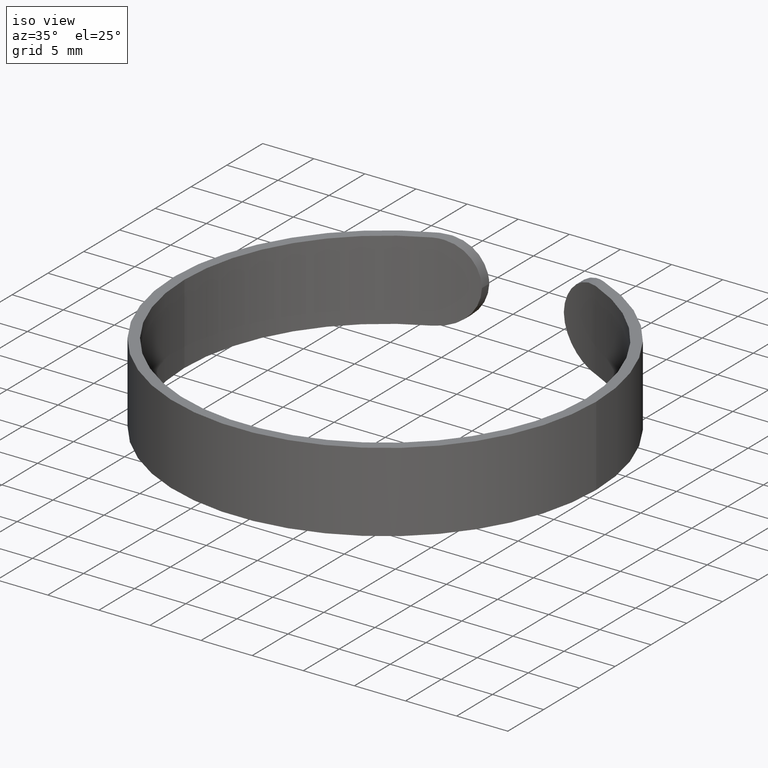
[diagram: clean part render]
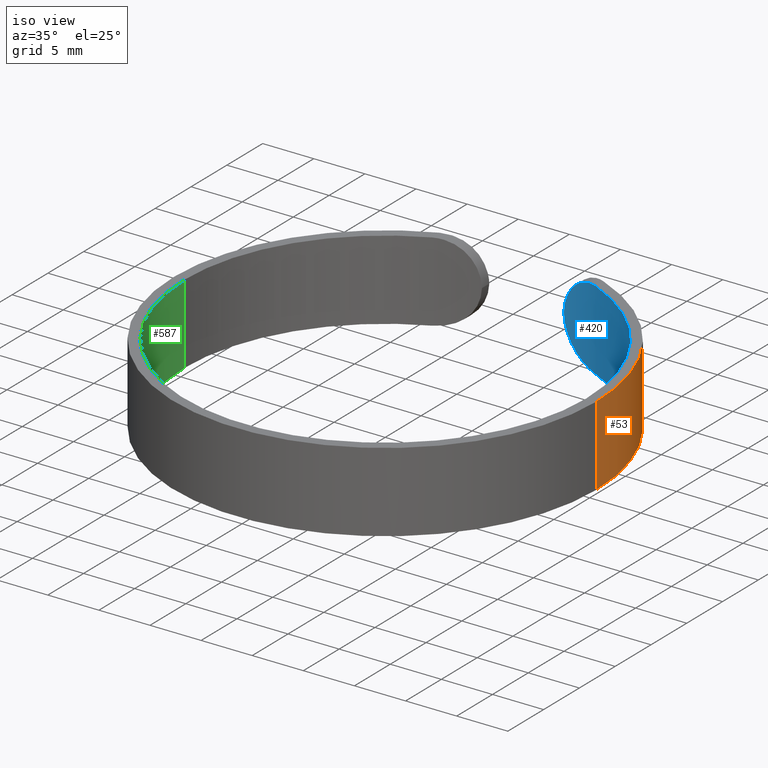
[diagram: same view with three faces highlighted in distinct colors, each labeled with its STEP entity id]
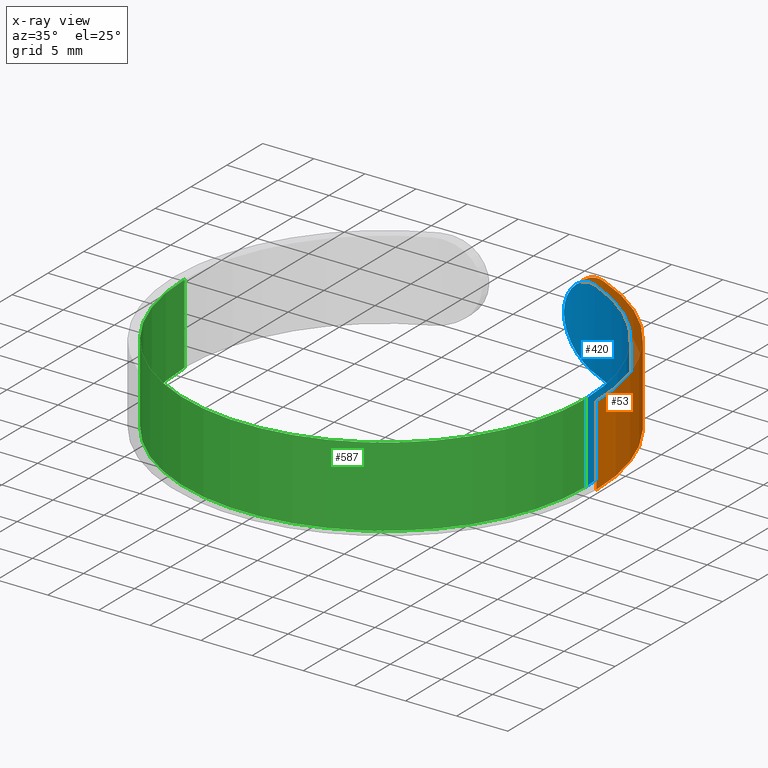
[diagram: x-ray of the same camera — body ghosted, the three highlighted faces saturated]
A machine part, iso view with three faces highlighted in distinct colors.
The next image is the same camera in x-ray (body ghosted, the three faces saturated) — at least one of them is partly hidden behind the body in this view.
Their STEP definitions:

[orange] entity #53 — the highlighted cylindrical surface (partial cylindrical patch) has radius 20.65 mm, axis along (-0, -0, -1).
#3 = CARTESIAN_POINT ( 'NONE',  ( 6.307868449288566400, 19.66454576154485100, 7.433185883465450100 ) ) ;
#21 = CARTESIAN_POINT ( 'NONE',  ( 4.895375029125314200, 20.06195776127647100, 1.464316113444598800 ) ) ;
#26 = CARTESIAN_POINT ( 'NONE',  ( 7.999999999999998200, 19.03739740615822700, 0.0000000000000000000 ) ) ;
#28 = CARTESIAN_POINT ( 'NONE',  ( 4.001250195373557100, 20.25864005490059900, 3.899999999999993200 ) ) ;
#38 = ORIENTED_EDGE ( 'NONE', *, *, #343, .T. ) ;
#46 = LINE ( 'NONE', #115, #200 ) ;
#53 = ADVANCED_FACE ( 'NONE', ( #530 ), #389, .T. ) ;
#54 = CARTESIAN_POINT ( 'NONE',  ( 6.776633648679635700, 19.50796762282028100, 7.616637737483452000 ) ) ;
#56 = CARTESIAN_POINT ( 'NONE',  ( 5.645090313509517600, 19.86472171443856300, 7.043598642528150900 ) ) ;
#72 = CARTESIAN_POINT ( 'NONE',  ( 4.243328438209134700, 20.20962064675951500, 2.601297775789987100 ) ) ;
#100 = CARTESIAN_POINT ( 'NONE',  ( 0.0000000000000000000, 0.0000000000000000000, 7.799999999999999800 ) ) ;
#110 = EDGE_CURVE ( 'NONE', #611, #638, #262, .T. ) ;
#115 = CARTESIAN_POINT ( 'NONE',  ( 20.64999999999999900, 2.528895640239284100E-015, 7.799999999999999800 ) ) ;
#117 = DIRECTION ( 'NONE',  ( -0.0000000000000000000, -0.0000000000000000000, -1.000000000000000000 ) ) ;
#120 = CARTESIAN_POINT ( 'NONE',  ( 6.309502619680717600, 19.66404555716294300, 0.3659257480248781500 ) ) ;
#124 = CARTESIAN_POINT ( 'NONE',  ( 4.007911188262439400, 20.25732445330909600, 3.633643559869719700 ) ) ;
#131 = CARTESIAN_POINT ( 'NONE',  ( 0.0000000000000000000, 0.0000000000000000000, 7.799999999999999800 ) ) ;
#132 = AXIS2_PLACEMENT_3D ( 'NONE', #568, #275, #619 ) ;
#167 = CARTESIAN_POINT ( 'NONE',  ( 20.64999999999999900, 2.528895640239284100E-015, 0.0000000000000000000 ) ) ;
#170 = CARTESIAN_POINT ( 'NONE',  ( 6.083280943453407200, 19.73491429910908900, 0.4798811949262119500 ) ) ;
#172 = CARTESIAN_POINT ( 'NONE',  ( 4.041219654612108400, 20.25079472239115900, 3.368594884924657900 ) ) ;
#176 = DIRECTION ( 'NONE',  ( 1.000000000000000000, 0.0000000000000000000, 0.0000000000000000000 ) ) ;
#190 = DIRECTION ( 'NONE',  ( -0.0000000000000000000, -0.0000000000000000000, -1.000000000000000000 ) ) ;
#200 = VECTOR ( 'NONE', #117, 1000.000000000000000 ) ;
#205 = CARTESIAN_POINT ( 'NONE',  ( 4.241968840561307600, 20.20990545619525500, 5.195094275268513000 ) ) ;
#219 = B_SPLINE_CURVE_WITH_KNOTS ( 'NONE', 3,
 ( #473, #465, #613, #374, #426, #120, #170, #610, #515, #273, #21, #380, #223, #72, #221, #172, #124, #616 ),
 .UNSPECIFIED., .F., .F.,
 ( 4, 2, 2, 2, 2, 2, 2, 2, 4 ),
 ( 0.0000000000000000000, 0.0007892263829322243100, 0.001578452765864448600, 0.002367679148796673000, 0.003156905531728897200, 0.003946131914661121400, 0.004735358297593346100, 0.005524584680525569000, 0.006313811063457791900 ),
 .UNSPECIFIED. ) ;
#221 = CARTESIAN_POINT ( 'NONE',  ( 4.159533489337329500, 20.22682437596988700, 2.850464779638620000 ) ) ;
#223 = CARTESIAN_POINT ( 'NONE',  ( 4.458415750141125700, 20.16326193648578500, 2.122200719903800900 ) ) ;
#229 = ORIENTED_EDGE ( 'NONE', *, *, #360, .F. ) ;
#250 = CARTESIAN_POINT ( 'NONE',  ( 7.020837237768791500, 19.42159598297301000, 7.686251061368726500 ) ) ;
#254 = CARTESIAN_POINT ( 'NONE',  ( 5.440013080308304400, 19.92150801506722100, 6.884360611345659500 ) ) ;
#261 = CARTESIAN_POINT ( 'NONE',  ( 4.456839681716575200, 20.16360975232659300, 5.674860312434185900 ) ) ;
#262 = B_SPLINE_CURVE_WITH_KNOTS ( 'NONE', 3,
 ( #501, #310, #603, #503, #205, #261, #365, #361, #462, #254, #56, #458, #3, #54, #250, #596, #644, #358 ),
 .UNSPECIFIED., .F., .F.,
 ( 4, 2, 2, 2, 2, 2, 2, 2, 4 ),
 ( 9.879302435172578300E-005, 0.0008880267322613933200, 0.001677260440171060700, 0.002466494148080728300, 0.003255727855990395700, 0.004044961563900063500, 0.004834195271809731300, 0.005623428979719398300, 0.006412662687629066100 ),
 .UNSPECIFIED. ) ;
#273 = CARTESIAN_POINT ( 'NONE',  ( 5.066084536706275000, 20.01987766382198700, 1.268757310143036500 ) ) ;
#275 = DIRECTION ( 'NONE',  ( 0.0000000000000000000, 0.0000000000000000000, 1.000000000000000000 ) ) ;
#276 = EDGE_CURVE ( 'NONE', #482, #323, #46, .T. ) ;
#283 = CARTESIAN_POINT ( 'NONE',  ( 20.64999999999999900, 2.528895640239284100E-015, 7.799999999999999800 ) ) ;
#310 = CARTESIAN_POINT ( 'NONE',  ( 4.007895173158690500, 20.25732761642551000, 4.165716036200509900 ) ) ;
#323 = VERTEX_POINT ( 'NONE', #167 ) ;
#329 = CIRCLE ( 'NONE', #472, 20.64999999999999900 ) ;
#337 = ORIENTED_EDGE ( 'NONE', *, *, #393, .T. ) ;
#343 = EDGE_CURVE ( 'NONE', #470, #611, #219, .T. ) ;
#348 = AXIS2_PLACEMENT_3D ( 'NONE', #100, #190, #536 ) ;
#358 = CARTESIAN_POINT ( 'NONE',  ( 7.999999999999998200, 19.03739740615822700, 7.799999999999999800 ) ) ;
#360 = EDGE_CURVE ( 'NONE', #482, #638, #329, .T. ) ;
#361 = CARTESIAN_POINT ( 'NONE',  ( 4.890900802454496000, 20.06305098658307500, 6.330319539736538400 ) ) ;
#365 = CARTESIAN_POINT ( 'NONE',  ( 4.586668906140798400, 20.13478070144105600, 5.901948057646662500 ) ) ;
#374 = CARTESIAN_POINT ( 'NONE',  ( 7.024669621259690200, 19.42018779177521300, 0.1128890766328167800 ) ) ;
#378 = EDGE_LOOP ( 'NONE', ( #229, #455, #337, #38, #488 ) ) ;
#380 = CARTESIAN_POINT ( 'NONE',  ( 4.591656496433365000, 20.13364190875028800, 1.890122386485302300 ) ) ;
#389 = CYLINDRICAL_SURFACE ( 'NONE', #348, 20.64999999999999900 ) ;
#393 = EDGE_CURVE ( 'NONE', #323, #470, #514, .T. ) ;
#426 = CARTESIAN_POINT ( 'NONE',  ( 6.781859530246283200, 19.50617574754069500, 0.1815695819246499800 ) ) ;
#455 = ORIENTED_EDGE ( 'NONE', *, *, #276, .T. ) ;
#458 = CARTESIAN_POINT ( 'NONE',  ( 6.081184435436575200, 19.73558738173175400, 7.319187209360465300 ) ) ;
#462 = CARTESIAN_POINT ( 'NONE',  ( 5.064334795514366000, 20.02030811419383100, 6.529227586146941300 ) ) ;
#465 = CARTESIAN_POINT ( 'NONE',  ( 7.754184259859721700, 19.14069545048471400, -3.811648262644351500E-018 ) ) ;
#470 = VERTEX_POINT ( 'NONE', #26 ) ;
#472 = AXIS2_PLACEMENT_3D ( 'NONE', #131, #574, #176 ) ;
#473 = CARTESIAN_POINT ( 'NONE',  ( 7.999999999999998200, 19.03739740615822700, 0.0000000000000000000 ) ) ;
#482 = VERTEX_POINT ( 'NONE', #283 ) ;
#488 = ORIENTED_EDGE ( 'NONE', *, *, #110, .T. ) ;
#501 = CARTESIAN_POINT ( 'NONE',  ( 4.001250195373557100, 20.25864005490059900, 3.899999999999993200 ) ) ;
#503 = CARTESIAN_POINT ( 'NONE',  ( 4.156984652658888300, 20.22734534515602800, 4.940412362330116400 ) ) ;
#514 = CIRCLE ( 'NONE', #132, 20.64999999999999900 ) ;
#515 = CARTESIAN_POINT ( 'NONE',  ( 5.444181554298780600, 19.92038155787397700, 0.9120656339124465500 ) ) ;
#530 = FACE_OUTER_BOUND ( 'NONE', #378, .T. ) ;
#535 = CARTESIAN_POINT ( 'NONE',  ( 7.999999999999998200, 19.03739740615822700, 7.799999999999999800 ) ) ;
#536 = DIRECTION ( 'NONE',  ( -1.000000000000000000, 0.0000000000000000000, 0.0000000000000000000 ) ) ;
#568 = CARTESIAN_POINT ( 'NONE',  ( 0.0000000000000000000, 0.0000000000000000000, 0.0000000000000000000 ) ) ;
#574 = DIRECTION ( 'NONE',  ( 0.0000000000000000000, 0.0000000000000000000, 1.000000000000000000 ) ) ;
#596 = CARTESIAN_POINT ( 'NONE',  ( 7.509196294477853900, 19.23804868109222700, 7.777539283222168400 ) ) ;
#603 = CARTESIAN_POINT ( 'NONE',  ( 4.040668045859474600, 20.25090177887930700, 4.426895360468116700 ) ) ;
#610 = CARTESIAN_POINT ( 'NONE',  ( 5.651724668404263200, 19.86280840421904200, 0.7518233867934613900 ) ) ;
#611 = VERTEX_POINT ( 'NONE', #28 ) ;
#613 = CARTESIAN_POINT ( 'NONE',  ( 7.509879393181144300, 19.23775944998630300, 0.02247784807856706400 ) ) ;
#616 = CARTESIAN_POINT ( 'NONE',  ( 4.001250195373557100, 20.25864005490059900, 3.899999999999993200 ) ) ;
#619 = DIRECTION ( 'NONE',  ( 1.000000000000000000, 0.0000000000000000000, 0.0000000000000000000 ) ) ;
#638 = VERTEX_POINT ( 'NONE', #535 ) ;
#644 = CARTESIAN_POINT ( 'NONE',  ( 7.754257849479670600, 19.14066452624927100, 7.800000000000002500 ) ) ;

[blue] entity #420 — the highlighted cylindrical surface (partial cylindrical patch) has radius 19.65 mm, axis along (-0, -0, -1).
#2 = CIRCLE ( 'NONE', #518, 19.65000000000000200 ) ;
#7 = AXIS2_PLACEMENT_3D ( 'NONE', #92, #247, #401 ) ;
#8 = CARTESIAN_POINT ( 'NONE',  ( 5.450281195804393500, 18.88003390752093200, 6.893003812361151000 ) ) ;
#9 = CARTESIAN_POINT ( 'NONE',  ( 5.445877405462773000, 18.88129034039584700, 0.9107619216082537500 ) ) ;
#10 = CARTESIAN_POINT ( 'NONE',  ( 7.755833108593554600, 18.05660586022417700, 1.304430738771622800E-016 ) ) ;
#13 = CARTESIAN_POINT ( 'NONE',  ( 19.65000000000000200, 2.406430960324549000E-015, 0.0000000000000000000 ) ) ;
#32 = EDGE_LOOP ( 'NONE', ( #212, #81, #79, #265, #593 ) ) ;
#35 = AXIS2_PLACEMENT_3D ( 'NONE', #521, #573, #280 ) ;
#41 = CARTESIAN_POINT ( 'NONE',  ( 7.999999999999998200, 17.94777144940285000, 7.799999999999999800 ) ) ;
#48 = VERTEX_POINT ( 'NONE', #632 ) ;
#58 = CARTESIAN_POINT ( 'NONE',  ( 5.651630731262319100, 18.82109915163533400, 0.7516877539211309600 ) ) ;
#79 = ORIENTED_EDGE ( 'NONE', *, *, #91, .T. ) ;
#81 = ORIENTED_EDGE ( 'NONE', *, *, #640, .F. ) ;
#88 = CYLINDRICAL_SURFACE ( 'NONE', #35, 19.65000000000000200 ) ;
#91 = EDGE_CURVE ( 'NONE', #571, #48, #164, .T. ) ;
#92 = CARTESIAN_POINT ( 'NONE',  ( 0.0000000000000000000, 0.0000000000000000000, 7.799999999999999800 ) ) ;
#105 = CIRCLE ( 'NONE', #7, 19.65000000000000200 ) ;
#108 = CARTESIAN_POINT ( 'NONE',  ( 6.314278777546841000, 18.60951411170248100, 0.3638699487630493400 ) ) ;
#127 = EDGE_CURVE ( 'NONE', #48, #579, #274, .T. ) ;
#150 = CARTESIAN_POINT ( 'NONE',  ( 4.244621703907975000, 19.18640092399108700, 5.202310547632307300 ) ) ;
#155 = CARTESIAN_POINT ( 'NONE',  ( 4.899663986239899800, 19.02998864249183700, 6.340966820067541800 ) ) ;
#158 = CARTESIAN_POINT ( 'NONE',  ( 4.460867748196959000, 19.13727913676626000, 5.682520630167808800 ) ) ;
#160 = CARTESIAN_POINT ( 'NONE',  ( 6.782413021497163200, 18.44405068199656500, 0.1815474680025497000 ) ) ;
#164 = B_SPLINE_CURVE_WITH_KNOTS ( 'NONE', 3,
 ( #41, #498, #508, #454, #315, #547, #259, #598, #8, #308, #155, #364, #158, #150, #304, #551, #207, #412 ),
 .UNSPECIFIED., .F., .F.,
 ( 4, 2, 2, 2, 2, 2, 2, 2, 4 ),
 ( 0.0000000000000000000, 0.0007915782711390879900, 0.001583156542278176000, 0.002374734813417264000, 0.003166313084556352000, 0.003957891355695440000, 0.004749469626834527900, 0.005541047897973615900, 0.006332626169112703900 ),
 .UNSPECIFIED. ) ;
#169 = VERTEX_POINT ( 'NONE', #13 ) ;
#187 = FACE_OUTER_BOUND ( 'NONE', #32, .T. ) ;
#188 = CARTESIAN_POINT ( 'NONE',  ( 19.65000000000000200, 2.406430960324549000E-015, 7.799999999999999800 ) ) ;
#203 = CARTESIAN_POINT ( 'NONE',  ( 4.895272756425587300, 19.03112186142437100, 1.464254878698307400 ) ) ;
#207 = CARTESIAN_POINT ( 'NONE',  ( 4.007931848873316700, 19.23691838290304500, 4.167182606267396700 ) ) ;
#212 = ORIENTED_EDGE ( 'NONE', *, *, #543, .F. ) ;
#213 = CARTESIAN_POINT ( 'NONE',  ( 4.157823145740763900, 19.20517071595705600, 2.856586839209863000 ) ) ;
#247 = DIRECTION ( 'NONE',  ( -0.0000000000000000000, -0.0000000000000000000, -1.000000000000000000 ) ) ;
#259 = CARTESIAN_POINT ( 'NONE',  ( 6.089757919290139700, 18.68391043943560000, 7.323621620567342600 ) ) ;
#265 = ORIENTED_EDGE ( 'NONE', *, *, #127, .T. ) ;
#270 = VECTOR ( 'NONE', #435, 1000.000000000000000 ) ;
#274 = B_SPLINE_CURVE_WITH_KNOTS ( 'NONE', 3,
 ( #506, #600, #413, #213, #459, #507, #555, #203, #312, #9, #58, #415, #108, #160, #557, #605, #10, #319 ),
 .UNSPECIFIED., .F., .F.,
 ( 4, 2, 2, 2, 2, 2, 2, 2, 4 ),
 ( 9.879328984881274500E-005, 0.0008903958337536197400, 0.001681998377658426800, 0.002473600921563233600, 0.003265203465468040800, 0.004056806009372848500, 0.004848408553277654800, 0.005640011097182462100, 0.006431613641087269300 ),
 .UNSPECIFIED. ) ;
#280 = DIRECTION ( 'NONE',  ( -1.000000000000000000, 0.0000000000000000000, 0.0000000000000000000 ) ) ;
#288 = CARTESIAN_POINT ( 'NONE',  ( 19.65000000000000200, 2.406430960324549000E-015, 7.799999999999999800 ) ) ;
#304 = CARTESIAN_POINT ( 'NONE',  ( 4.160391861737951800, 19.20461758641537000, 4.952552016800557200 ) ) ;
#308 = CARTESIAN_POINT ( 'NONE',  ( 5.070973960904297900, 18.98542779476696300, 6.536520605814734700 ) ) ;
#312 = CARTESIAN_POINT ( 'NONE',  ( 5.069204769459568100, 18.98588603776352100, 1.265521356903191600 ) ) ;
#315 = CARTESIAN_POINT ( 'NONE',  ( 6.787566680149544700, 18.44218038758831600, 7.620211943998249600 ) ) ;
#319 = CARTESIAN_POINT ( 'NONE',  ( 7.999999999999998200, 17.94777144940285000, 0.0000000000000000000 ) ) ;
#331 = CARTESIAN_POINT ( 'NONE',  ( 0.0000000000000000000, 0.0000000000000000000, 0.0000000000000000000 ) ) ;
#332 = DIRECTION ( 'NONE',  ( 1.000000000000000000, 0.0000000000000000000, 0.0000000000000000000 ) ) ;
#336 = CARTESIAN_POINT ( 'NONE',  ( 7.999999999999998200, 17.94777144940285000, 0.0000000000000000000 ) ) ;
#352 = LINE ( 'NONE', #188, #270 ) ;
#364 = CARTESIAN_POINT ( 'NONE',  ( 4.594805017448497800, 19.10588762039217400, 5.915004233969306700 ) ) ;
#379 = EDGE_CURVE ( 'NONE', #579, #169, #2, .T. ) ;
#401 = DIRECTION ( 'NONE',  ( 1.000000000000000000, 0.0000000000000000000, 0.0000000000000000000 ) ) ;
#412 = CARTESIAN_POINT ( 'NONE',  ( 4.001250195373557100, 19.23830805642802100, 3.900000000000009700 ) ) ;
#413 = CARTESIAN_POINT ( 'NONE',  ( 4.040862851705466800, 19.23011968121933500, 3.371549781869935400 ) ) ;
#415 = CARTESIAN_POINT ( 'NONE',  ( 6.087727897746093600, 18.68459986837397600, 0.4772757591149832700 ) ) ;
#420 = ADVANCED_FACE ( 'NONE', ( #187 ), #88, .F. ) ;
#430 = DIRECTION ( 'NONE',  ( -0.0000000000000000000, -0.0000000000000000000, -1.000000000000000000 ) ) ;
#435 = DIRECTION ( 'NONE',  ( -0.0000000000000000000, -0.0000000000000000000, -1.000000000000000000 ) ) ;
#454 = CARTESIAN_POINT ( 'NONE',  ( 7.029534599250007800, 18.35145145585904900, 7.688260396833950200 ) ) ;
#459 = CARTESIAN_POINT ( 'NONE',  ( 4.243281513413091200, 19.18669641104820700, 2.601256097506067900 ) ) ;
#490 = CARTESIAN_POINT ( 'NONE',  ( 7.999999999999998200, 17.94777144940285000, 7.799999999999999800 ) ) ;
#498 = CARTESIAN_POINT ( 'NONE',  ( 7.755753132138677200, 18.05664150875250600, 7.800000000000000700 ) ) ;
#506 = CARTESIAN_POINT ( 'NONE',  ( 4.001250195373557100, 19.23830805642802100, 3.900000000000009700 ) ) ;
#507 = CARTESIAN_POINT ( 'NONE',  ( 4.459208789825900100, 19.13766480374611600, 2.120580967910128000 ) ) ;
#508 = CARTESIAN_POINT ( 'NONE',  ( 7.512721737642381800, 18.15899609867132400, 7.777804910082180900 ) ) ;
#518 = AXIS2_PLACEMENT_3D ( 'NONE', #331, #430, #332 ) ;
#521 = CARTESIAN_POINT ( 'NONE',  ( 0.0000000000000000000, 0.0000000000000000000, 7.799999999999999800 ) ) ;
#543 = EDGE_CURVE ( 'NONE', #621, #169, #352, .T. ) ;
#547 = CARTESIAN_POINT ( 'NONE',  ( 6.315880273041504900, 18.60899608421766200, 7.436998019991173200 ) ) ;
#551 = CARTESIAN_POINT ( 'NONE',  ( 4.041462356063936700, 19.22999685668690600, 4.433203386267237500 ) ) ;
#555 = CARTESIAN_POINT ( 'NONE',  ( 4.589655885951295000, 19.10712834291797800, 1.893133226572724100 ) ) ;
#557 = CARTESIAN_POINT ( 'NONE',  ( 7.025993754578011300, 18.35282960933737000, 0.1125291588596109700 ) ) ;
#571 = VERTEX_POINT ( 'NONE', #490 ) ;
#573 = DIRECTION ( 'NONE',  ( -0.0000000000000000000, -0.0000000000000000000, -1.000000000000000000 ) ) ;
#579 = VERTEX_POINT ( 'NONE', #336 ) ;
#593 = ORIENTED_EDGE ( 'NONE', *, *, #379, .T. ) ;
#598 = CARTESIAN_POINT ( 'NONE',  ( 5.658067134806311000, 18.81913752334129700, 7.052734939519365500 ) ) ;
#600 = CARTESIAN_POINT ( 'NONE',  ( 4.007915069416395900, 19.23692187275283100, 3.633488362233355600 ) ) ;
#605 = CARTESIAN_POINT ( 'NONE',  ( 7.512108181566760300, 18.15927238567606800, 0.02217656496122123700 ) ) ;
#621 = VERTEX_POINT ( 'NONE', #288 ) ;
#632 = CARTESIAN_POINT ( 'NONE',  ( 4.001250195373557100, 19.23830805642802100, 3.900000000000009700 ) ) ;
#640 = EDGE_CURVE ( 'NONE', #571, #621, #105, .T. ) ;

[green] entity #587 — the highlighted cylindrical surface (partial cylindrical patch) has radius 19.65 mm, axis along (-0, -0, -1).
#12 = ORIENTED_EDGE ( 'NONE', *, *, #263, .F. ) ;
#13 = CARTESIAN_POINT ( 'NONE',  ( 19.65000000000000200, 2.406430960324549000E-015, 0.0000000000000000000 ) ) ;
#15 = CARTESIAN_POINT ( 'NONE',  ( -19.65000000000000200, 0.0000000000000000000, 0.0000000000000000000 ) ) ;
#31 = ORIENTED_EDGE ( 'NONE', *, *, #433, .T. ) ;
#62 = DIRECTION ( 'NONE',  ( -0.0000000000000000000, -0.0000000000000000000, -1.000000000000000000 ) ) ;
#90 = CARTESIAN_POINT ( 'NONE',  ( -19.65000000000000200, 0.0000000000000000000, 7.799999999999999800 ) ) ;
#125 = DIRECTION ( 'NONE',  ( -0.0000000000000000000, -0.0000000000000000000, -1.000000000000000000 ) ) ;
#141 = DIRECTION ( 'NONE',  ( -1.000000000000000000, 0.0000000000000000000, 0.0000000000000000000 ) ) ;
#163 = AXIS2_PLACEMENT_3D ( 'NONE', #392, #445, #141 ) ;
#168 = ORIENTED_EDGE ( 'NONE', *, *, #570, .F. ) ;
#169 = VERTEX_POINT ( 'NONE', #13 ) ;
#188 = CARTESIAN_POINT ( 'NONE',  ( 19.65000000000000200, 2.406430960324549000E-015, 7.799999999999999800 ) ) ;
#189 = VERTEX_POINT ( 'NONE', #15 ) ;
#220 = AXIS2_PLACEMENT_3D ( 'NONE', #475, #125, #524 ) ;
#245 = FACE_OUTER_BOUND ( 'NONE', #592, .T. ) ;
#255 = LINE ( 'NONE', #344, #468 ) ;
#263 = EDGE_CURVE ( 'NONE', #621, #563, #505, .T. ) ;
#270 = VECTOR ( 'NONE', #435, 1000.000000000000000 ) ;
#288 = CARTESIAN_POINT ( 'NONE',  ( 19.65000000000000200, 2.406430960324549000E-015, 7.799999999999999800 ) ) ;
#314 = ORIENTED_EDGE ( 'NONE', *, *, #543, .T. ) ;
#344 = CARTESIAN_POINT ( 'NONE',  ( -19.65000000000000200, 0.0000000000000000000, 7.799999999999999800 ) ) ;
#352 = LINE ( 'NONE', #188, #270 ) ;
#376 = CIRCLE ( 'NONE', #220, 19.65000000000000200 ) ;
#392 = CARTESIAN_POINT ( 'NONE',  ( 0.0000000000000000000, 0.0000000000000000000, 7.799999999999999800 ) ) ;
#421 = CARTESIAN_POINT ( 'NONE',  ( 0.0000000000000000000, 0.0000000000000000000, 7.799999999999999800 ) ) ;
#433 = EDGE_CURVE ( 'NONE', #169, #189, #376, .T. ) ;
#435 = DIRECTION ( 'NONE',  ( -0.0000000000000000000, -0.0000000000000000000, -1.000000000000000000 ) ) ;
#440 = DIRECTION ( 'NONE',  ( -0.0000000000000000000, -0.0000000000000000000, -1.000000000000000000 ) ) ;
#445 = DIRECTION ( 'NONE',  ( -0.0000000000000000000, -0.0000000000000000000, -1.000000000000000000 ) ) ;
#463 = DIRECTION ( 'NONE',  ( 1.000000000000000000, 0.0000000000000000000, 0.0000000000000000000 ) ) ;
#468 = VECTOR ( 'NONE', #440, 1000.000000000000000 ) ;
#475 = CARTESIAN_POINT ( 'NONE',  ( 0.0000000000000000000, 0.0000000000000000000, 0.0000000000000000000 ) ) ;
#476 = CYLINDRICAL_SURFACE ( 'NONE', #163, 19.65000000000000200 ) ;
#500 = AXIS2_PLACEMENT_3D ( 'NONE', #421, #62, #463 ) ;
#505 = CIRCLE ( 'NONE', #500, 19.65000000000000200 ) ;
#524 = DIRECTION ( 'NONE',  ( 1.000000000000000000, 0.0000000000000000000, 0.0000000000000000000 ) ) ;
#543 = EDGE_CURVE ( 'NONE', #621, #169, #352, .T. ) ;
#563 = VERTEX_POINT ( 'NONE', #90 ) ;
#570 = EDGE_CURVE ( 'NONE', #563, #189, #255, .T. ) ;
#587 = ADVANCED_FACE ( 'NONE', ( #245 ), #476, .F. ) ;
#592 = EDGE_LOOP ( 'NONE', ( #12, #314, #31, #168 ) ) ;
#621 = VERTEX_POINT ( 'NONE', #288 ) ;